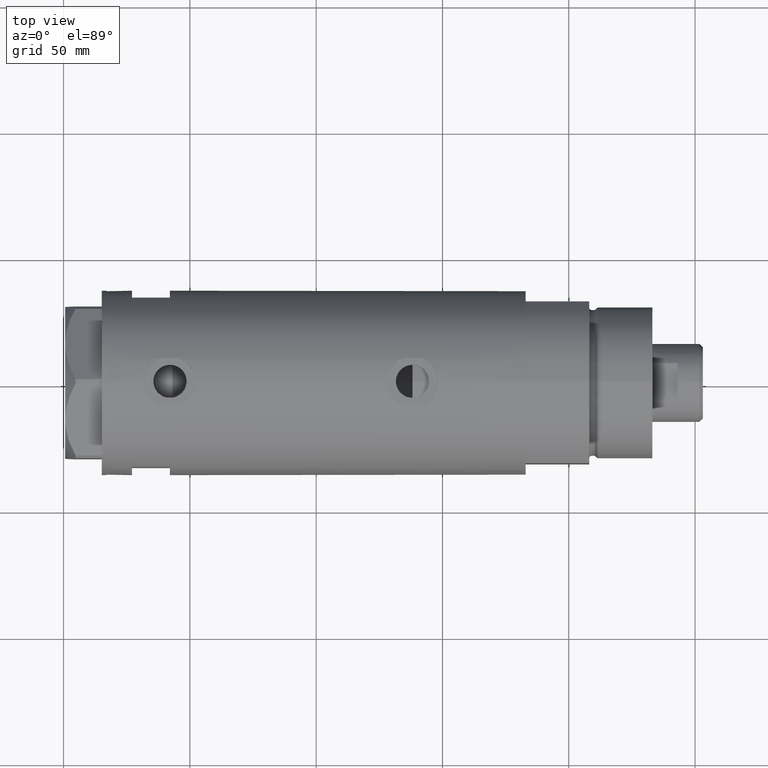
[diagram: clean part render]
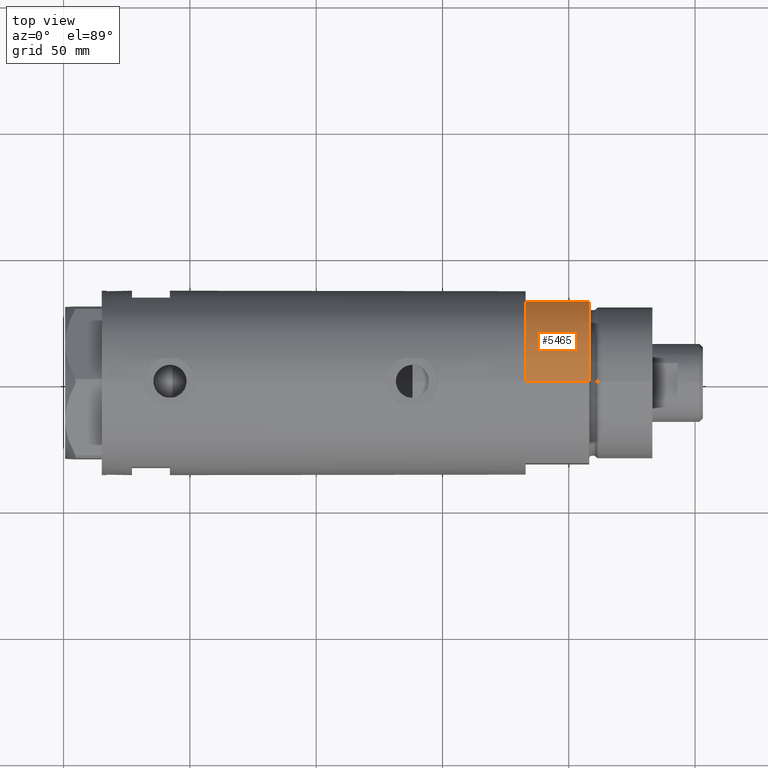
[diagram: same view with one face highlighted and labeled with its STEP entity id]
A machine part, top view. The second image highlights one B-rep face of the part: STEP entity #5465.
In plain terms, the highlighted cylindrical surface (partial cylindrical patch) has radius 36.5 mm, axis along (-1, -0, 0).
Its self-contained STEP definition (entity closure, byte-faithful):
#486 = VERTEX_POINT ( 'NONE', #2226 ) ;
#504 = CARTESIAN_POINT ( 'NONE',  ( -36.50000000000000000, 0.000000000000000000, 25.19999999999999929 ) ) ;
#544 = VERTEX_POINT ( 'NONE', #936 ) ;
#637 = CARTESIAN_POINT ( 'NONE',  ( 0.000000000000000000, 0.000000000000000000, 25.19999999999999929 ) ) ;
#664 = AXIS2_PLACEMENT_3D ( 'NONE', #5570, #1454, #3288 ) ;
#750 = CIRCLE ( 'NONE', #4210, 36.50000000000000000 ) ;
#861 = CARTESIAN_POINT ( 'NONE',  ( -36.50000000000000000, 0.000000000000000000, 25.19999999999999929 ) ) ;
#936 = CARTESIAN_POINT ( 'NONE',  ( -17.55704986607943496, 32.00000000000000000, 25.19999999999999929 ) ) ;
#1242 = CIRCLE ( 'NONE', #664, 36.50000000000000000 ) ;
#1262 = ORIENTED_EDGE ( 'NONE', *, *, #4908, .T. ) ;
#1315 = CARTESIAN_POINT ( 'NONE',  ( -17.55704986607943141, 32.00000000000000000, 0.000000000000000000 ) ) ;
#1356 = DIRECTION ( 'NONE',  ( -0.000000000000000000, -0.000000000000000000, -1.000000000000000000 ) ) ;
#1454 = DIRECTION ( 'NONE',  ( 0.000000000000000000, 0.000000000000000000, 1.000000000000000000 ) ) ;
#1569 = DIRECTION ( 'NONE',  ( -0.000000000000000000, -0.000000000000000000, -1.000000000000000000 ) ) ;
#1772 = EDGE_CURVE ( 'NONE', #4350, #486, #3688, .T. ) ;
#2210 = EDGE_LOOP ( 'NONE', ( #2765, #2289, #4490, #1262 ) ) ;
#2226 = CARTESIAN_POINT ( 'NONE',  ( -36.50000000000000000, 0.000000000000000000, 0.000000000000000000 ) ) ;
#2289 = ORIENTED_EDGE ( 'NONE', *, *, #3562, .F. ) ;
#2419 = DIRECTION ( 'NONE',  ( -1.000000000000000000, 0.000000000000000000, 0.000000000000000000 ) ) ;
#2481 = CARTESIAN_POINT ( 'NONE',  ( 0.000000000000000000, 0.000000000000000000, 25.19999999999999929 ) ) ;
#2490 = DIRECTION ( 'NONE',  ( 0.000000000000000000, 0.000000000000000000, 1.000000000000000000 ) ) ;
#2687 = CARTESIAN_POINT ( 'NONE',  ( -17.55704986607943141, 32.00000000000000000, 0.000000000000000000 ) ) ;
#2702 = AXIS2_PLACEMENT_3D ( 'NONE', #2481, #1569, #2419 ) ;
#2765 = ORIENTED_EDGE ( 'NONE', *, *, #1772, .F. ) ;
#2870 = VERTEX_POINT ( 'NONE', #1315 ) ;
#3288 = DIRECTION ( 'NONE',  ( 1.000000000000000000, 0.000000000000000000, 0.000000000000000000 ) ) ;
#3562 = EDGE_CURVE ( 'NONE', #544, #4350, #750, .T. ) ;
#3688 = LINE ( 'NONE', #504, #5153 ) ;
#3823 = FACE_OUTER_BOUND ( 'NONE', #2210, .T. ) ;
#4210 = AXIS2_PLACEMENT_3D ( 'NONE', #637, #2490, #4315 ) ;
#4222 = CYLINDRICAL_SURFACE ( 'NONE', #2702, 36.50000000000000000 ) ;
#4315 = DIRECTION ( 'NONE',  ( 1.000000000000000000, 0.000000000000000000, 0.000000000000000000 ) ) ;
#4350 = VERTEX_POINT ( 'NONE', #861 ) ;
#4408 = EDGE_CURVE ( 'NONE', #2870, #544, #5009, .T. ) ;
#4490 = ORIENTED_EDGE ( 'NONE', *, *, #4408, .F. ) ;
#4516 = DIRECTION ( 'NONE',  ( -0.000000000000000000, -0.000000000000000000, 1.000000000000000000 ) ) ;
#4528 = VECTOR ( 'NONE', #4516, 1000.000000000000000 ) ;
#4908 = EDGE_CURVE ( 'NONE', #2870, #486, #1242, .T. ) ;
#5009 = LINE ( 'NONE', #2687, #4528 ) ;
#5153 = VECTOR ( 'NONE', #1356, 1000.000000000000000 ) ;
#5465 = ADVANCED_FACE ( 'NONE', ( #3823 ), #4222, .T. ) ;
#5570 = CARTESIAN_POINT ( 'NONE',  ( 0.000000000000000000, 0.000000000000000000, 0.000000000000000000 ) ) ;